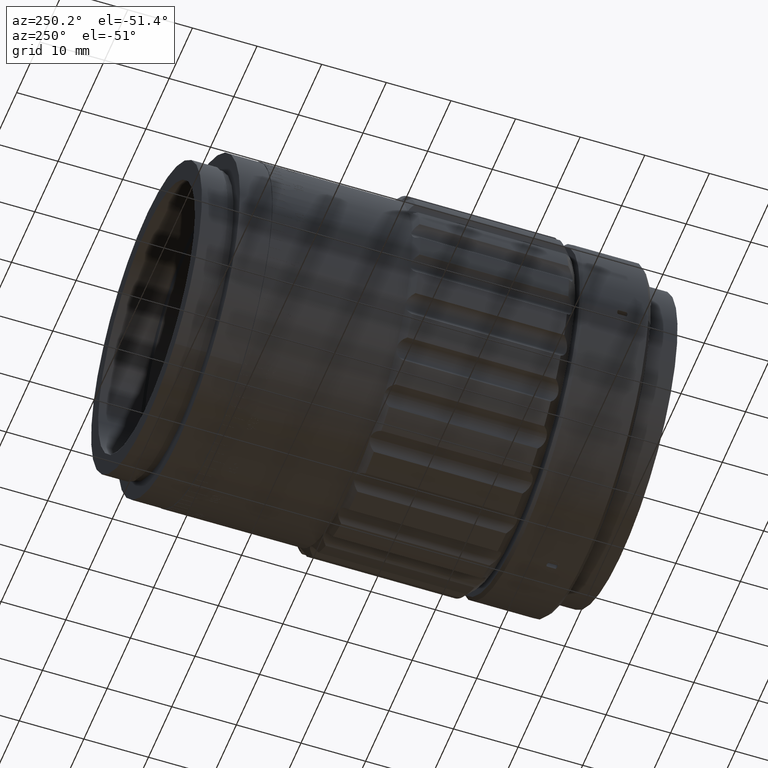
[diagram: clean part render]
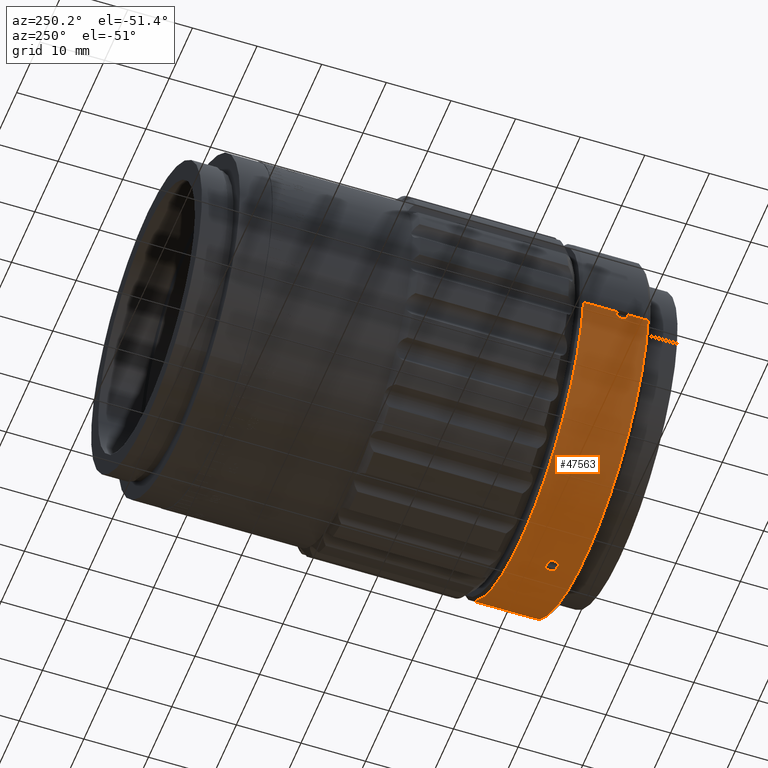
[diagram: same view with one face highlighted and labeled with its STEP entity id]
A machine part, auxiliary view. The second image highlights one B-rep face of the part: STEP entity #47563.
In plain terms, the highlighted cylindrical surface (partial cylindrical patch) has radius 27 mm, axis along (-0, 1, -0).
Its self-contained STEP definition (entity closure, byte-faithful):
#129 = CARTESIAN_POINT ( 'NONE',  ( 26.99564129960699400, -5.940485532328426500, -0.4908498319222277500 ) ) ;
#797 = B_SPLINE_CURVE_WITH_KNOTS ( 'NONE', 3,
 ( #14698, #26354, #66003, #26054, #6240, #61366, #79696, #21397 ),
 .UNSPECIFIED., .F., .F.,
 ( 4, 2, 2, 4 ),
 ( 0.003752331038131669900, 0.004064757883205457100, 0.004377184728279243400, 0.005002038418426818700 ),
 .UNSPECIFIED. ) ;
#940 = ORIENTED_EDGE ( 'NONE', *, *, #31047, .T. ) ;
#1226 = DIRECTION ( 'NONE',  ( -0.0000000000000000000, 1.000000000000000000, -0.0000000000000000000 ) ) ;
#1804 = VECTOR ( 'NONE', #64964, 1000.000000000000000 ) ;
#2882 = EDGE_CURVE ( 'NONE', #37450, #71613, #79589, .T. ) ;
#3858 = CARTESIAN_POINT ( 'NONE',  ( 26.99935573635296400, -4.521011656067536000, -0.2101130331653920700 ) ) ;
#4273 = CARTESIAN_POINT ( 'NONE',  ( 0.4028455707386757200, -5.999070336816048500, 26.99716824786193200 ) ) ;
#4478 = CARTESIAN_POINT ( 'NONE',  ( 0.0000000000000000000, 35.23590944691601100, 27.00000000000000400 ) ) ;
#4565 = CARTESIAN_POINT ( 'NONE',  ( 0.6990070776969128400, -5.702986168747790100, 26.99098000136176600 ) ) ;
#4820 = B_SPLINE_CURVE_WITH_KNOTS ( 'NONE', 3,
 ( #17650, #70985, #5672, #39523, #59030, #72993, #46799, #33099, #72704, #5970, #129, #59620, #26074, #12963, #40111, #86149 ),
 .UNSPECIFIED., .F., .F.,
 ( 4, 2, 2, 2, 2, 2, 2, 4 ),
 ( 0.0000000000000000000, 0.0003126628019115878700, 0.0006253256038231757400, 0.001250651207646352800, 0.001563314009557941600, 0.001875976811469529900, 0.002188639613381118500, 0.002501302415292706900 ),
 .UNSPECIFIED. ) ;
#5672 = CARTESIAN_POINT ( 'NONE',  ( 26.98878449226377900, -5.509462866366868100, 0.7791829174816239400 ) ) ;
#5712 = ORIENTED_EDGE ( 'NONE', *, *, #30213, .T. ) ;
#5970 = CARTESIAN_POINT ( 'NONE',  ( 26.99717085908692800, -5.999170141794993000, -0.4026777261065587200 ) ) ;
#6240 = CARTESIAN_POINT ( 'NONE',  ( 0.4916935295134602900, -4.660366324339431500, -26.99562353355643300 ) ) ;
#7995 = FACE_OUTER_BOUND ( 'NONE', #27652, .T. ) ;
#9166 = CARTESIAN_POINT ( 'NONE',  ( 0.0000000000000000000, 0.7000000000000339300, 27.00000000000000400 ) ) ;
#12151 = VERTEX_POINT ( 'NONE', #54135 ) ;
#12963 = CARTESIAN_POINT ( 'NONE',  ( 26.98878180905358100, -5.509150000429905900, -0.7792754668592719600 ) ) ;
#13565 = ORIENTED_EDGE ( 'NONE', *, *, #14538, .F. ) ;
#14538 = EDGE_CURVE ( 'NONE', #26126, #34619, #86273, .T. ) ;
#14698 = CARTESIAN_POINT ( 'NONE',  ( 3.306546360444549100E-015, -4.499999999999997300, -27.00000000000000400 ) ) ;
#15361 = CARTESIAN_POINT ( 'NONE',  ( 0.4920776469117888500, -4.660663907668452800, 26.99561639113073900 ) ) ;
#15832 = LINE ( 'NONE', #55069, #64868 ) ;
#16386 = CARTESIAN_POINT ( 'NONE',  ( 26.99936782619286300, -4.520595238912213700, 0.2086924303816107600 ) ) ;
#16513 = CARTESIAN_POINT ( 'NONE',  ( 0.7792846025469892800, -5.509103455508504300, 26.98878151819408800 ) ) ;
#16600 = AXIS2_PLACEMENT_3D ( 'NONE', #34272, #21116, #80901 ) ;
#16935 = CARTESIAN_POINT ( 'NONE',  ( 3.306546357697854100E-015, 0.7000000000000339300, -27.00000000000000400 ) ) ;
#17273 = CARTESIAN_POINT ( 'NONE',  ( 26.98814554577620600, -5.088603989152730400, 0.8000000000000020400 ) ) ;
#17650 = CARTESIAN_POINT ( 'NONE',  ( 26.98814554577620600, -5.299999999999997200, 0.8000000000000019300 ) ) ;
#18314 = CARTESIAN_POINT ( 'NONE',  ( 0.0000000000000000000, 35.23590944691601100, 27.00000000000000400 ) ) ;
#19882 = B_SPLINE_CURVE_WITH_KNOTS ( 'NONE', 3,
 ( #22369, #28825, #62053, #29093, #22656, #82153, #22080, #36108 ),
 .UNSPECIFIED., .F., .F.,
 ( 4, 2, 2, 4 ),
 ( 0.0000000000000000000, 0.0003127337224147970800, 0.0006254674448295941600, 0.001250934889659190100 ),
 .UNSPECIFIED. ) ;
#20669 = ORIENTED_EDGE ( 'NONE', *, *, #81108, .F. ) ;
#21116 = DIRECTION ( 'NONE',  ( 0.0000000000000000000, -1.000000000000000000, 0.0000000000000000000 ) ) ;
#21332 = DIRECTION ( 'NONE',  ( 0.0000000000000000000, 0.0000000000000000000, 1.000000000000000000 ) ) ;
#21397 = CARTESIAN_POINT ( 'NONE',  ( 0.7999999999997191600, -5.299999999999997200, -26.98814554577621600 ) ) ;
#22080 = CARTESIAN_POINT ( 'NONE',  ( 0.2087795574650279700, -6.100000000000392200, -27.00000000000002100 ) ) ;
#22369 = CARTESIAN_POINT ( 'NONE',  ( 0.7999999999997191600, -5.299999999999997200, -26.98814554577621600 ) ) ;
#22656 = CARTESIAN_POINT ( 'NONE',  ( 0.6393357880114294300, -5.792087701774302200, -26.99253056519908600 ) ) ;
#23088 = CARTESIAN_POINT ( 'NONE',  ( 26.99098689323858500, -4.881496996286215600, 0.7130770306225818800 ) ) ;
#23312 = ORIENTED_EDGE ( 'NONE', *, *, #2882, .T. ) ;
#23870 = CARTESIAN_POINT ( 'NONE',  ( -1.231113765503358500E-012, -6.100000000010527200, -27.00000000000031600 ) ) ;
#24102 = CARTESIAN_POINT ( 'NONE',  ( 0.4909796347111253200, -5.940382599746396200, 26.99563886126420100 ) ) ;
#24206 = CARTESIAN_POINT ( 'NONE',  ( 0.8000000000043393500, -5.300000000000415500, 26.98814554577607800 ) ) ;
#25439 = CARTESIAN_POINT ( 'NONE',  ( 26.99561064362769300, -4.660907787016499900, -0.4923822362610364400 ) ) ;
#26054 = CARTESIAN_POINT ( 'NONE',  ( 0.4031249078069137900, -4.601071344764589500, -26.99716447320465200 ) ) ;
#26074 = CARTESIAN_POINT ( 'NONE',  ( 26.99098120701215800, -5.703071585777883500, -0.6989615673748218500 ) ) ;
#26126 = VERTEX_POINT ( 'NONE', #28890 ) ;
#26354 = CARTESIAN_POINT ( 'NONE',  ( 0.1054662544817767800, -4.500000000000032900, -27.00000000000000000 ) ) ;
#27430 = CIRCLE ( 'NONE', #16600, 27.00000000000000400 ) ;
#27652 = EDGE_LOOP ( 'NONE', ( #23312, #940, #50965, #54485, #62048, #5712, #13565, #20669, #39882, #43991 ) ) ;
#28394 = ORIENTED_EDGE ( 'NONE', *, *, #80173, .F. ) ;
#28475 = VERTEX_POINT ( 'NONE', #58622 ) ;
#28642 = VECTOR ( 'NONE', #45887, 1000.000000000000000 ) ;
#28794 = CARTESIAN_POINT ( 'NONE',  ( 0.2095706711978898000, -4.520857222349286900, 26.99936024672100700 ) ) ;
#28825 = CARTESIAN_POINT ( 'NONE',  ( 0.7999999999997192700, -5.405745926468124900, -26.98814554577621300 ) ) ;
#28890 = CARTESIAN_POINT ( 'NONE',  ( -2.745235950169121100E-024, -4.499999999999997300, 27.00000000000000400 ) ) ;
#29093 = CARTESIAN_POINT ( 'NONE',  ( 0.6988094280696420800, -5.703324760589362400, -26.99098518333222800 ) ) ;
#29536 = EDGE_CURVE ( 'NONE', #60256, #73638, #52252, .T. ) ;
#29836 = CARTESIAN_POINT ( 'NONE',  ( 26.98814554577608100, -5.300000000000415500, -0.8000000000042450900 ) ) ;
#30213 = EDGE_CURVE ( 'NONE', #35352, #34619, #27430, .T. ) ;
#31047 = EDGE_CURVE ( 'NONE', #71613, #83328, #15832, .T. ) ;
#33009 = FACE_BOUND ( 'NONE', #52375, .T. ) ;
#33099 = CARTESIAN_POINT ( 'NONE',  ( 27.00000109654969900, -6.100037008554556600, -0.1040800697540588000 ) ) ;
#34272 = CARTESIAN_POINT ( 'NONE',  ( 0.0000000000000000000, 0.7000000000000339300, 0.0000000000000000000 ) ) ;
#34619 = VERTEX_POINT ( 'NONE', #9166 ) ;
#35216 = CARTESIAN_POINT ( 'NONE',  ( 0.4031928956655600500, -4.601130324683881100, 26.99716298219740600 ) ) ;
#35352 = VERTEX_POINT ( 'NONE', #16935 ) ;
#36108 = CARTESIAN_POINT ( 'NONE',  ( -1.231113765503358500E-012, -6.100000000010527200, -27.00000000000031600 ) ) ;
#36829 = CARTESIAN_POINT ( 'NONE',  ( 26.99097393854134800, -4.882323703780220300, -0.7134865133290048100 ) ) ;
#37412 = CARTESIAN_POINT ( 'NONE',  ( 26.99562929885511800, -4.660121836214545800, 0.4913876671634151400 ) ) ;
#37450 = VERTEX_POINT ( 'NONE', #63043 ) ;
#37822 = CARTESIAN_POINT ( 'NONE',  ( 0.2091783036278784800, -6.079248565588154700, 26.99936337017078000 ) ) ;
#38541 = CARTESIAN_POINT ( 'NONE',  ( 26.98814554577620600, -5.299999999999997200, 0.8000000000000019300 ) ) ;
#38877 = CARTESIAN_POINT ( 'NONE',  ( 27.00000260586581600, -4.499912051997977600, 0.1048389072506226600 ) ) ;
#39523 = CARTESIAN_POINT ( 'NONE',  ( 26.99098400059718700, -5.703241420271069700, 0.6988541108554555700 ) ) ;
#39646 = DIRECTION ( 'NONE',  ( -0.0000000000000000000, 1.000000000000000000, -0.0000000000000000000 ) ) ;
#39882 = ORIENTED_EDGE ( 'NONE', *, *, #29536, .F. ) ;
#40111 = CARTESIAN_POINT ( 'NONE',  ( 26.98814554577620900, -5.404427773356677500, -0.7999999999999091200 ) ) ;
#43274 = CARTESIAN_POINT ( 'NONE',  ( 26.98814554577619500, -5.091191747978185400, -0.8000000000001774600 ) ) ;
#43438 = CARTESIAN_POINT ( 'NONE',  ( 26.98814554577608100, -5.300000000000415500, -0.8000000000042450900 ) ) ;
#43888 = CARTESIAN_POINT ( 'NONE',  ( 3.306546357697854100E-015, -9.300000000000002500, -27.00000000000000400 ) ) ;
#43991 = ORIENTED_EDGE ( 'NONE', *, *, #63385, .F. ) ;
#45887 = DIRECTION ( 'NONE',  ( -0.0000000000000000000, 1.000000000000000000, -0.0000000000000000000 ) ) ;
#46799 = CARTESIAN_POINT ( 'NONE',  ( 26.99999780241737600, -6.099925831581531500, 0.2090123629749053600 ) ) ;
#47563 = ADVANCED_FACE ( 'NONE', ( #33009, #7995 ), #85187, .T. ) ;
#48731 = CARTESIAN_POINT ( 'NONE',  ( 0.8000000000043393500, -5.300000000000415500, 26.98814554577607800 ) ) ;
#50965 = ORIENTED_EDGE ( 'NONE', *, *, #58036, .F. ) ;
#52252 = B_SPLINE_CURVE_WITH_KNOTS ( 'NONE', 3,
 ( #83893, #70163, #37822, #4273, #24102, #84437, #4565, #16513, #56486, #70743 ),
 .UNSPECIFIED., .F., .F.,
 ( 4, 2, 2, 2, 4 ),
 ( 0.001250934889659381700, 0.001563526771067712900, 0.001876118652476044100, 0.002188710533884375000, 0.002501302415292706400 ),
 .UNSPECIFIED. ) ;
#52375 = EDGE_LOOP ( 'NONE', ( #28394, #80277 ) ) ;
#52928 = B_SPLINE_CURVE_WITH_KNOTS ( 'NONE', 3,
 ( #48731, #80983, #61744, #15361, #35216, #28794, #61181, #81548 ),
 .UNSPECIFIED., .F., .F.,
 ( 4, 2, 2, 4 ),
 ( 0.002501302415292706400, 0.003126816726712094300, 0.003439573882421787100, 0.003752331038131480400 ),
 .UNSPECIFIED. ) ;
#54135 = CARTESIAN_POINT ( 'NONE',  ( 3.306546360444549100E-015, -4.499999999999997300, -27.00000000000000400 ) ) ;
#54485 = ORIENTED_EDGE ( 'NONE', *, *, #74488, .F. ) ;
#55069 = CARTESIAN_POINT ( 'NONE',  ( 3.306546357697854100E-015, 35.23590944691601100, -27.00000000000000400 ) ) ;
#55925 = DIRECTION ( 'NONE',  ( -0.0000000000000000000, 1.000000000000000000, -0.0000000000000000000 ) ) ;
#56355 = CARTESIAN_POINT ( 'NONE',  ( 26.99999737755909700, -4.500088507411635200, -0.1061768573496406600 ) ) ;
#56486 = CARTESIAN_POINT ( 'NONE',  ( 0.8000000000000032600, -5.404404086272074400, 26.98814554577620900 ) ) ;
#57822 = CARTESIAN_POINT ( 'NONE',  ( 1.234420311641378900E-012, -6.100000000010527200, 27.00000000000031600 ) ) ;
#58036 = EDGE_CURVE ( 'NONE', #28475, #83328, #19882, .T. ) ;
#58622 = CARTESIAN_POINT ( 'NONE',  ( 0.7999999999997191600, -5.299999999999997200, -26.98814554577621600 ) ) ;
#59030 = CARTESIAN_POINT ( 'NONE',  ( 26.99252879473906200, -5.791990147398633900, 0.6394071710473813200 ) ) ;
#59620 = CARTESIAN_POINT ( 'NONE',  ( 26.99251117518482700, -5.791153827790166600, -0.6402524440149955900 ) ) ;
#60256 = VERTEX_POINT ( 'NONE', #57822 ) ;
#61181 = CARTESIAN_POINT ( 'NONE',  ( 0.1055777577860912800, -4.499999999999984900, 27.00000000000000700 ) ) ;
#61366 = CARTESIAN_POINT ( 'NONE',  ( 0.7131679168545055300, -4.881709925544579500, -26.99098370738369500 ) ) ;
#61744 = CARTESIAN_POINT ( 'NONE',  ( 0.7133946287709435100, -4.882109701198278800, 26.99097714226639500 ) ) ;
#62048 = ORIENTED_EDGE ( 'NONE', *, *, #78324, .T. ) ;
#62053 = CARTESIAN_POINT ( 'NONE',  ( 0.7791729323291075600, -5.509511385822118100, -26.98878480638104800 ) ) ;
#63043 = CARTESIAN_POINT ( 'NONE',  ( 0.0000000000000000000, -9.300000000000002500, 27.00000000000000400 ) ) ;
#63047 = CARTESIAN_POINT ( 'NONE',  ( 26.99717040799408400, -4.600844219205424000, 0.4027474472748580600 ) ) ;
#63385 = EDGE_CURVE ( 'NONE', #37450, #60256, #67565, .T. ) ;
#64443 = VERTEX_POINT ( 'NONE', #38541 ) ;
#64868 = VECTOR ( 'NONE', #55925, 1000.000000000000000 ) ;
#64964 = DIRECTION ( 'NONE',  ( -0.0000000000000000000, 1.000000000000000000, -0.0000000000000000000 ) ) ;
#65854 = DIRECTION ( 'NONE',  ( 0.0000000000000000000, 0.0000000000000000000, 1.000000000000000000 ) ) ;
#66003 = CARTESIAN_POINT ( 'NONE',  ( 0.2092375607039134200, -4.520749976198718700, -26.99936330596980100 ) ) ;
#66571 = CARTESIAN_POINT ( 'NONE',  ( 3.306546357697854100E-015, 35.23590944691601100, -27.00000000000000400 ) ) ;
#67565 = LINE ( 'NONE', #18314, #1804 ) ;
#70163 = CARTESIAN_POINT ( 'NONE',  ( 0.1043424325418773100, -6.099999999999775800, 26.99999999999999300 ) ) ;
#70214 = AXIS2_PLACEMENT_3D ( 'NONE', #85980, #39646, #65854 ) ;
#70743 = CARTESIAN_POINT ( 'NONE',  ( 0.8000000000043393500, -5.300000000000415500, 26.98814554577607800 ) ) ;
#70985 = CARTESIAN_POINT ( 'NONE',  ( 26.98814554577620600, -5.405721945829711200, 0.8000000000000019300 ) ) ;
#71613 = VERTEX_POINT ( 'NONE', #43888 ) ;
#72056 = CARTESIAN_POINT ( 'NONE',  ( 26.98814554577620600, -5.299999999999997200, 0.8000000000000019300 ) ) ;
#72704 = CARTESIAN_POINT ( 'NONE',  ( 26.99936523992313700, -6.079312422084790100, -0.2089506809376603100 ) ) ;
#72993 = CARTESIAN_POINT ( 'NONE',  ( 26.99716906235829900, -6.013380447473376300, 0.4179374106959787300 ) ) ;
#73638 = VERTEX_POINT ( 'NONE', #24206 ) ;
#74488 = EDGE_CURVE ( 'NONE', #12151, #28475, #797, .T. ) ;
#77066 = DIRECTION ( 'NONE',  ( -0.0000000000000000000, 1.000000000000000000, -0.0000000000000000000 ) ) ;
#78324 = EDGE_CURVE ( 'NONE', #12151, #35352, #84917, .T. ) ;
#79589 = CIRCLE ( 'NONE', #85331, 27.00000000000000400 ) ;
#79696 = CARTESIAN_POINT ( 'NONE',  ( 0.7999999999997192700, -5.088715678432516000, -26.98814554577621600 ) ) ;
#80173 = EDGE_CURVE ( 'NONE', #64443, #84561, #4820, .T. ) ;
#80277 = ORIENTED_EDGE ( 'NONE', *, *, #80754, .F. ) ;
#80754 = EDGE_CURVE ( 'NONE', #84561, #64443, #84148, .T. ) ;
#80901 = DIRECTION ( 'NONE',  ( 0.0000000000000000000, 0.0000000000000000000, -1.000000000000000000 ) ) ;
#80983 = CARTESIAN_POINT ( 'NONE',  ( 0.8000000000002714900, -5.091081425918741100, 26.98814554577619500 ) ) ;
#81108 = EDGE_CURVE ( 'NONE', #73638, #26126, #52928, .T. ) ;
#81114 = CARTESIAN_POINT ( 'NONE',  ( 0.0000000000000000000, -9.300000000000002500, 0.0000000000000000000 ) ) ;
#81548 = CARTESIAN_POINT ( 'NONE',  ( -2.745235950169121100E-024, -4.499999999999997300, 27.00000000000000400 ) ) ;
#82153 = CARTESIAN_POINT ( 'NONE',  ( 0.4177787390447709200, -6.013486614788396500, -26.99717183664535400 ) ) ;
#83328 = VERTEX_POINT ( 'NONE', #23870 ) ;
#83460 = CARTESIAN_POINT ( 'NONE',  ( 26.99715704377385000, -4.601357668019977300, -0.4035705869536567200 ) ) ;
#83893 = CARTESIAN_POINT ( 'NONE',  ( 1.234420311641378900E-012, -6.100000000010527200, 27.00000000000031600 ) ) ;
#84148 = B_SPLINE_CURVE_WITH_KNOTS ( 'NONE', 3,
 ( #29836, #43274, #36829, #25439, #83460, #3858, #56355, #38877, #16386, #63047, #37412, #23088, #17273, #72056 ),
 .UNSPECIFIED., .F., .F.,
 ( 4, 2, 2, 2, 2, 2, 4 ),
 ( 0.002501302415292706900, 0.003126486416076236300, 0.003439078416468000600, 0.003751670416859764500, 0.004064262417251528400, 0.004376854417643292700, 0.005002038418426822200 ),
 .UNSPECIFIED. ) ;
#84437 = CARTESIAN_POINT ( 'NONE',  ( 0.6403259576529717300, -5.791053503922796600, 26.99250935347536300 ) ) ;
#84561 = VERTEX_POINT ( 'NONE', #43438 ) ;
#84917 = LINE ( 'NONE', #66571, #28642 ) ;
#85164 = VECTOR ( 'NONE', #77066, 1000.000000000000000 ) ;
#85187 = CYLINDRICAL_SURFACE ( 'NONE', #70214, 27.00000000000000400 ) ;
#85331 = AXIS2_PLACEMENT_3D ( 'NONE', #81114, #1226, #21332 ) ;
#85980 = CARTESIAN_POINT ( 'NONE',  ( 0.0000000000000000000, 35.23590944691601100, 0.0000000000000000000 ) ) ;
#86149 = CARTESIAN_POINT ( 'NONE',  ( 26.98814554577608100, -5.300000000000415500, -0.8000000000042450900 ) ) ;
#86273 = LINE ( 'NONE', #4478, #85164 ) ;